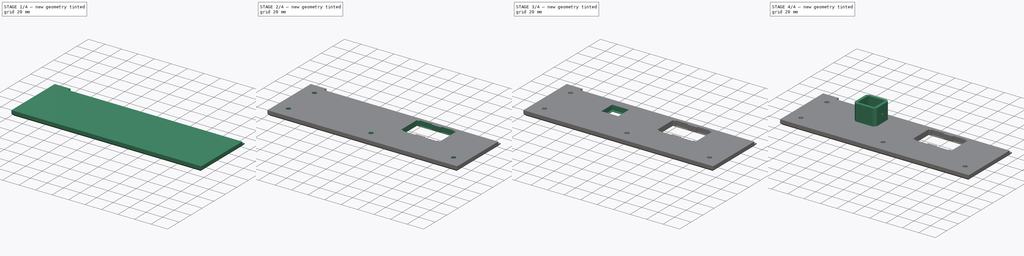
[diagram: build sequence overview — one tinted view per stage of 4, left to right]
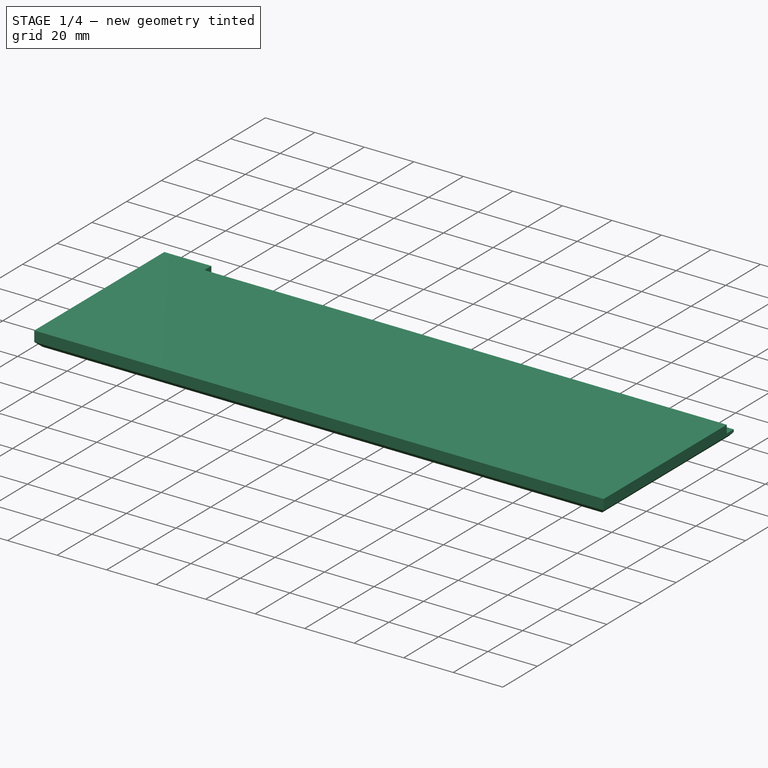
[diagram: stage 1 of 4 — iso view after this stage's code; geometry added in this stage tinted green]
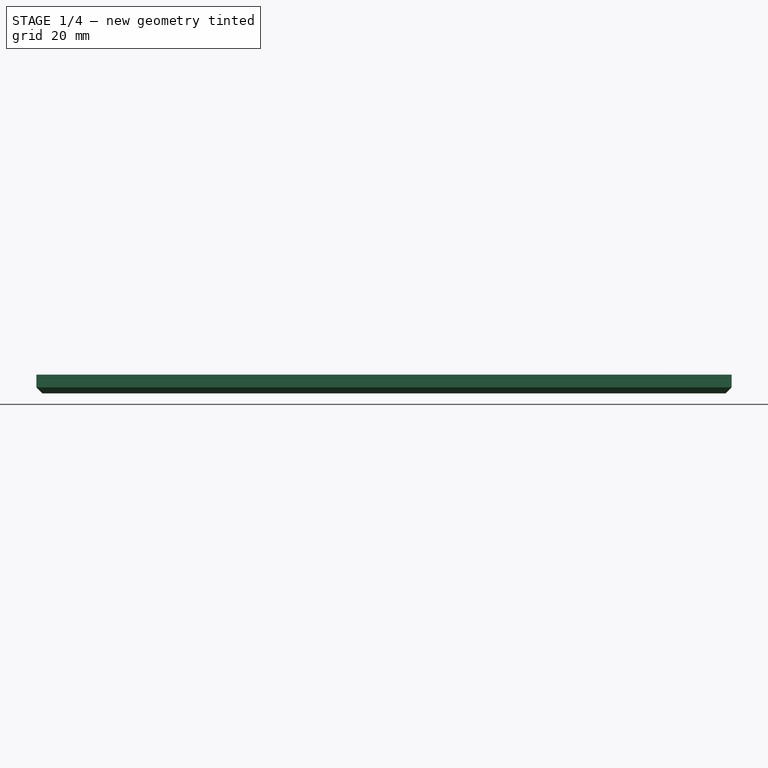
[diagram: stage 1 of 4 — front view after this stage's code; geometry added in this stage tinted green]
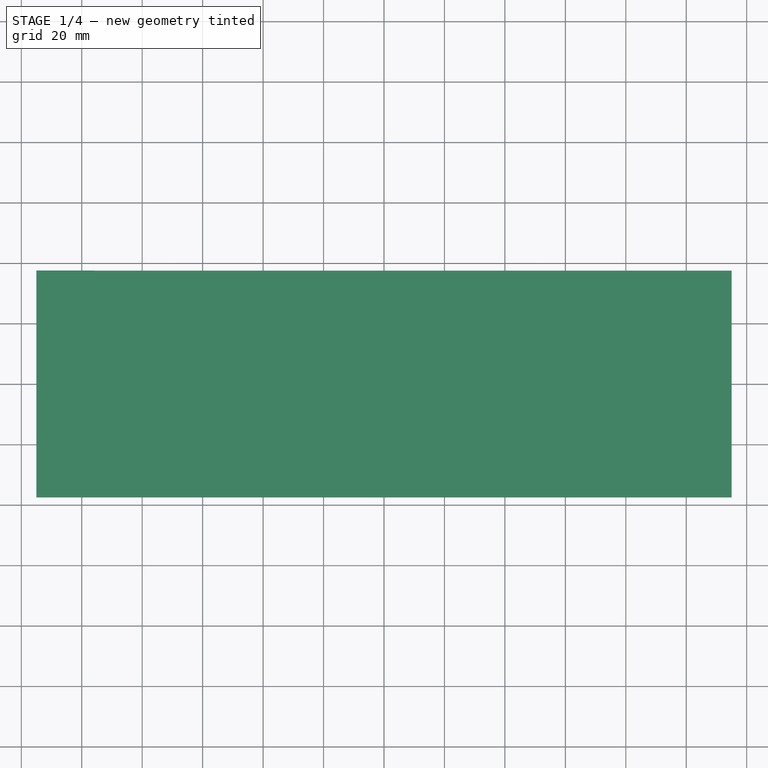
[diagram: stage 1 of 4 — top view after this stage's code; geometry added in this stage tinted green]
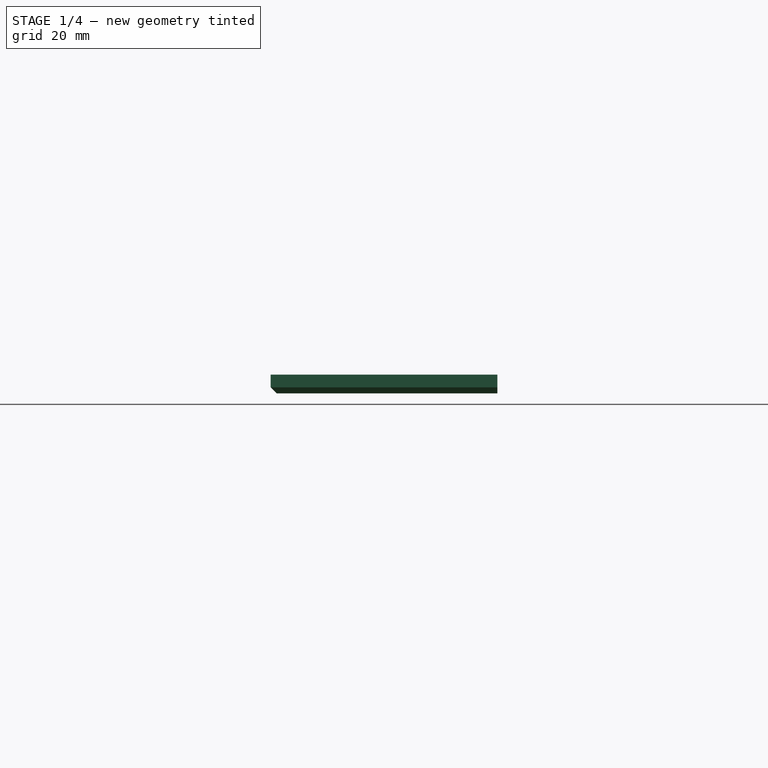
[diagram: stage 1 of 4 — right view after this stage's code; geometry added in this stage tinted green]
FCSTD DOCUMENT  (FreeCAD 1.0R39319 (Git))
Label: ports-panel
License: All rights reserved
objects: Sketcher::SketchObject×9, PartDesign::Pocket×7, PartDesign::Pad×2, PartDesign::Chamfer×2, PartDesign::Body×1, App::Part×1
note: 52 computed .brp shape members not serialized (recipe doc carries the construction recipe); baked Part::Feature solids carry a one-line shape summary decoded from their .brp

FEATURE [Sketcher::SketchObject] Sketch
  ArcFitTolerance = 1e-06
  AttachmentSupport = -> [XY_Plane]
  FullyConstrained = true
  MakeInternals = false
  MapMode = 5
  sketch-geometry (5):
    g0: LineSegment StartX=-115 StartY=-37.5 StartZ=0 EndX=115 EndY=-37.5 EndZ=0
    g1: LineSegment StartX=115 StartY=-37.5 StartZ=0 EndX=115 EndY=37.5 EndZ=0
    g2: LineSegment StartX=115 StartY=37.5 StartZ=0 EndX=-115 EndY=37.5 EndZ=0
    g3: LineSegment StartX=-115 StartY=37.5 StartZ=0 EndX=-115 EndY=-37.5 EndZ=0
    g4: GeomPoint [constr] X=0 Y=-1e-16 Z=0
  constraints (12):
    c: Coincident(g0,g1)
    c: Coincident(g1,g2)
    c: Coincident(g2,g3)
    c: Coincident(g3,g0)
    c: Horizontal(g0)
    c: Horizontal(g2)
    c: Vertical(g1)
    c: Vertical(g3)
    c: Symmetric(g2,g0,g4)
    c: Distance(g1,g3) = 230
    c: Distance(g0,g2) = 75
    c: Coincident(g4,g-1)
FEATURE [PartDesign::Pad] Pad
  Direction = (0,0,1)
  Length = 6.2
  Length2 = 10
  Profile = -> Sketch
  ReferenceAxis = -> Sketch [N_Axis]
  Refine = true
  Suppressed = false
  Type = 0
FEATURE [Sketcher::SketchObject] Sketch001
  ArcFitTolerance = 1e-06
  AttachmentSupport = -> [Pad]
  FullyConstrained = true
  MakeInternals = false
  MapMode = 5
  Placement = pos=(0,0,6.2) rot=(0,0,1;0rad)
  sketch-geometry (9):
    g0: LineSegment [constr] StartX=-115 StartY=-37.5 StartZ=0 EndX=115 EndY=-37.5 EndZ=0
    g1: LineSegment [constr] StartX=115 StartY=-37.5 StartZ=0 EndX=115 EndY=37.5 EndZ=0
    g2: LineSegment [constr] StartX=115 StartY=37.5 StartZ=0 EndX=-115 EndY=37.5 EndZ=0
    g3: LineSegment [constr] StartX=-115 StartY=37.5 StartZ=0 EndX=-115 EndY=-37.5 EndZ=0
    g4: GeomPoint [constr] X=0 Y=0 Z=0
    g5: LineSegment StartX=115 StartY=37.5 StartZ=0 EndX=-96 EndY=37.5 EndZ=0
    g6: LineSegment StartX=-96 StartY=37.5 StartZ=0 EndX=-96 EndY=33.5 EndZ=0
    g7: LineSegment StartX=-96 StartY=33.5 StartZ=0 EndX=115 EndY=33.5 EndZ=0
    g8: LineSegment StartX=115 StartY=33.5 StartZ=0 EndX=115 EndY=37.5 EndZ=0
  constraints (23):
    c: Coincident(g0,g1)
    c: Coincident(g1,g2)
    c: Coincident(g2,g3)
    c: Coincident(g3,g0)
    c: Horizontal(g0)
    c: Horizontal(g2)
    c: Vertical(g1)
    c: Vertical(g3)
    c: Symmetric(g2,g0,g4)
    c: Distance(g1,g3) = 230
    c: Distance(g0,g2) = 75
    c: Coincident(g4,g-1)
    c: Coincident(g5,g6)
    c: Coincident(g6,g7)
    c: Coincident(g7,g8)
    c: Coincident(g8,g5)
    c: Horizontal(g5)
    c: Horizontal(g7)
    c: Vertical(g6)
    c: Vertical(g8)
    c: Distance(g6,g8) = 211
    c: Distance(g5,g7) = 4
    c: Coincident(g5,g1)
FEATURE [PartDesign::Pocket] Pocket
  BaseFeature = -> Pad
  Direction = (0,0,-1)
  Length = 3.2
  Length2 = 5
  Profile = -> Sketch001
  ReferenceAxis = -> Sketch001 [N_Axis]
  Refine = true
  Suppressed = false
  Type = 0
FEATURE [PartDesign::Chamfer] Chamfer
  Angle = 45
  Base = -> Pocket [Edge6,Edge3,Edge8]
  BaseFeature = -> Pocket
  ChamferType = 0
  FlipDirection = false
  Refine = true
  Size = 2
  Size2 = 1
  SupportTransform = false
  Suppressed = false
  UseAllEdges = false
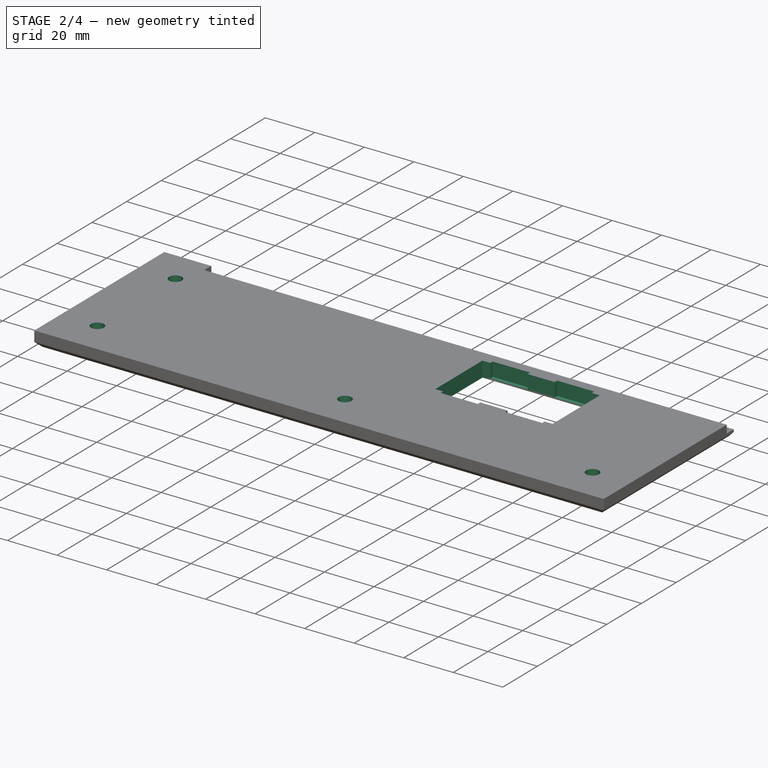
[diagram: stage 2 of 4 — iso view after this stage's code; geometry added in this stage tinted green]
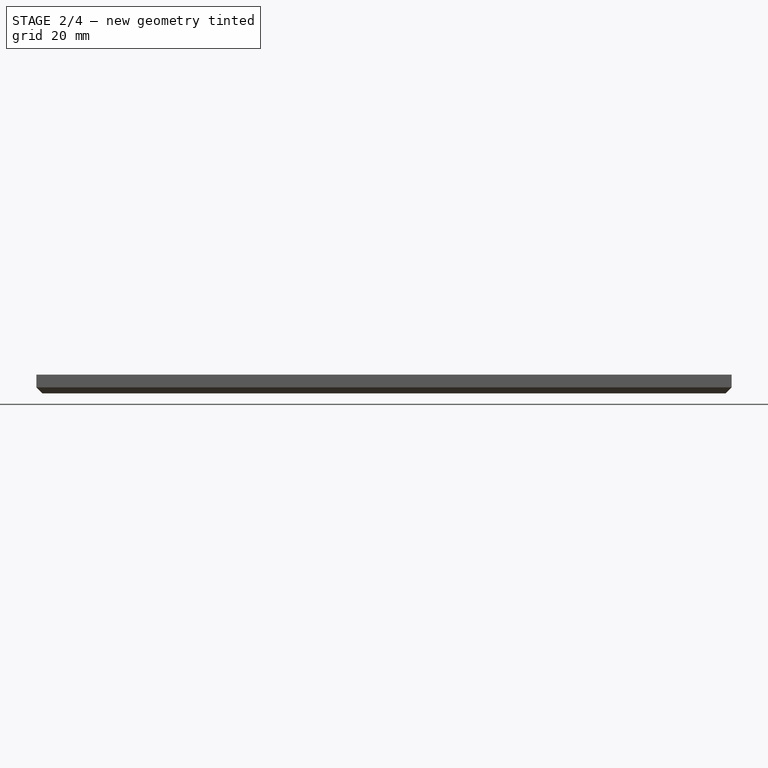
[diagram: stage 2 of 4 — front view after this stage's code; geometry added in this stage tinted green]
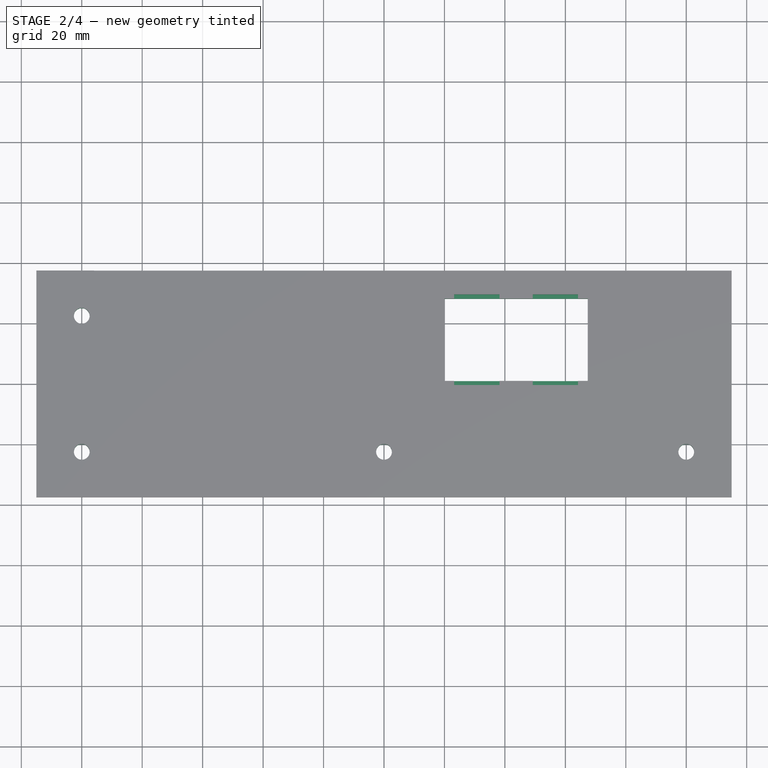
[diagram: stage 2 of 4 — top view after this stage's code; geometry added in this stage tinted green]
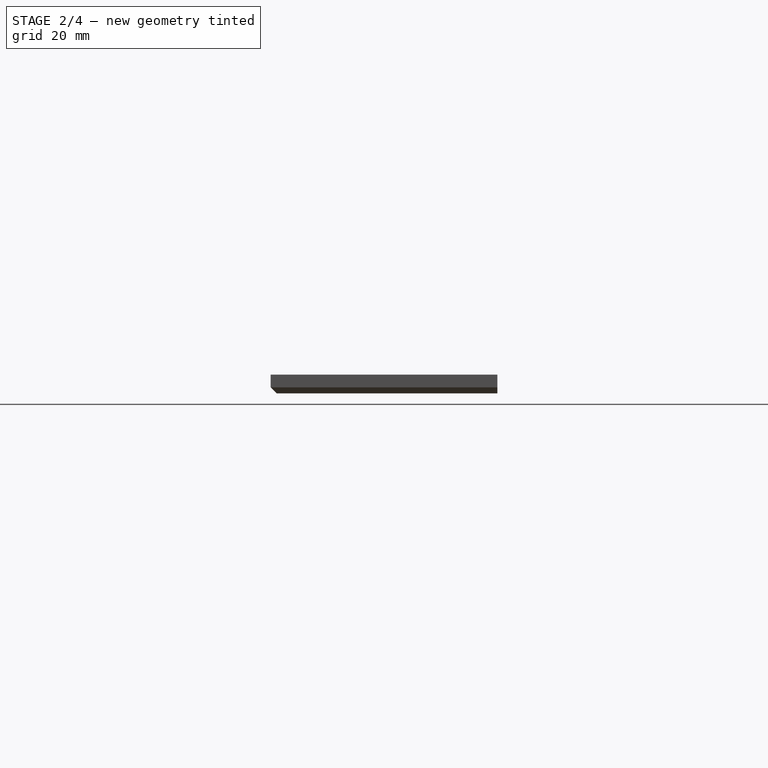
[diagram: stage 2 of 4 — right view after this stage's code; geometry added in this stage tinted green]
FEATURE [Sketcher::SketchObject] Sketch002
  ArcFitTolerance = 1e-06
  AttachmentSupport = -> [Chamfer]
  FullyConstrained = true
  MakeInternals = false
  MapMode = 5
  Placement = pos=(0,0,6.2) rot=(0,0,1;0rad)
  sketch-geometry (9):
    g0: LineSegment [constr] StartX=-100 StartY=-22.5 StartZ=0 EndX=100 EndY=-22.5 EndZ=0
    g1: LineSegment [constr] StartX=100 StartY=-22.5 StartZ=0 EndX=100 EndY=22.5 EndZ=0
    g2: LineSegment [constr] StartX=100 StartY=22.5 StartZ=0 EndX=-100 EndY=22.5 EndZ=0
    g3: LineSegment [constr] StartX=-100 StartY=22.5 StartZ=0 EndX=-100 EndY=-22.5 EndZ=0
    g4: GeomPoint [constr] X=0 Y=0 Z=0
    g5: Circle CenterX=-100 CenterY=-22.5 CenterZ=0 NormalX=0 NormalY=0 NormalZ=1 AngleXU=0 Radius=2.6
    g6: Circle CenterX=0 CenterY=-22.5 CenterZ=0 NormalX=0 NormalY=0 NormalZ=1 AngleXU=0 Radius=2.6
    g7: Circle CenterX=100 CenterY=-22.5 CenterZ=0 NormalX=0 NormalY=0 NormalZ=1 AngleXU=0 Radius=2.6
    g8: Circle CenterX=-100 CenterY=22.5 CenterZ=0 NormalX=0 NormalY=0 NormalZ=1 AngleXU=0 Radius=2.6
  constraints (20):
    c: Coincident(g0,g1)
    c: Coincident(g1,g2)
    c: Coincident(g2,g3)
    c: Coincident(g3,g0)
    c: Horizontal(g0)
    c: Horizontal(g2)
    c: Vertical(g1)
    c: Vertical(g3)
    c: Symmetric(g2,g0,g4)
    c: Distance(g1,g3) = 200
    c: Distance(g0,g2) = 45
    c: Coincident(g4,g-1)
    c: Diameter(g5) = 5.2
    c: Coincident(g5,g0)
    c: Diameter(g6) = 5.2
    c: Symmetric(g0,g0,g6)
    c: Diameter(g7) = 5.2
    c: Coincident(g7,g0)
    c: Diameter(g8) = 5.2
    c: Coincident(g8,g2)
FEATURE [PartDesign::Pocket] Pocket001
  BaseFeature = -> Chamfer
  Direction = (0,0,-1)
  Length = 10
  Length2 = 5
  Profile = -> Sketch002
  ReferenceAxis = -> Sketch002 [N_Axis]
  Refine = true
  Suppressed = false
  Type = 0
FEATURE [Sketcher::SketchObject] Sketch003
  ArcFitTolerance = 1e-06
  AttachmentSupport = -> [Pocket001]
  FullyConstrained = true
  MakeInternals = false
  MapMode = 5
  Placement = pos=(0,0,0) rot=(1,0,0;3.14159rad)
  sketch-geometry (17):
    g0: LineSegment [constr] StartX=-115 StartY=-37.5 StartZ=0 EndX=115 EndY=-37.5 EndZ=0
    g1: LineSegment [constr] StartX=115 StartY=-37.5 StartZ=0 EndX=115 EndY=37.5 EndZ=0
    g2: LineSegment [constr] StartX=115 StartY=37.5 StartZ=0 EndX=-115 EndY=37.5 EndZ=0
    g3: LineSegment [constr] StartX=-115 StartY=37.5 StartZ=0 EndX=-115 EndY=-37.5 EndZ=0
    g4: GeomPoint [constr] X=0 Y=0 Z=0
    g5: LineSegment [constr] StartX=115 StartY=37.5 StartZ=0 EndX=-115 EndY=37.5 EndZ=0
    g6: LineSegment [constr] StartX=-115 StartY=37.5 StartZ=0 EndX=-115 EndY=7.5 EndZ=0
    g7: LineSegment [constr] StartX=-115 StartY=7.5 StartZ=0 EndX=115 EndY=7.5 EndZ=0
    g8: LineSegment [constr] StartX=115 StartY=7.5 StartZ=0 EndX=115 EndY=37.5 EndZ=0
    g9: LineSegment [constr] StartX=0 StartY=0 StartZ=0 EndX=0 EndY=-1 EndZ=0
    g10: LineSegment [constr] StartX=0 StartY=-1 StartZ=0 EndX=20 EndY=-1 EndZ=0
    g11: LineSegment [constr] StartX=20 StartY=-1 StartZ=0 EndX=20 EndY=0 EndZ=0
    g12: LineSegment [constr] StartX=20 StartY=0 StartZ=0 EndX=0 EndY=0 EndZ=0
    g13: LineSegment StartX=20 StartY=-1 StartZ=0 EndX=20 EndY=-28.2 EndZ=0
    g14: LineSegment StartX=20 StartY=-28.2 StartZ=0 EndX=67.4 EndY=-28.2 EndZ=0
    g15: LineSegment StartX=67.4 StartY=-28.2 StartZ=0 EndX=67.4 EndY=-1 EndZ=0
    g16: LineSegment StartX=67.4 StartY=-1 StartZ=0 EndX=20 EndY=-1 EndZ=0
  constraints (45):
    c: Coincident(g0,g1)
    c: Coincident(g1,g2)
    c: Coincident(g2,g3)
    c: Coincident(g3,g0)
    c: Horizontal(g0)
    c: Horizontal(g2)
    c: Vertical(g1)
    c: Vertical(g3)
    c: Symmetric(g2,g0,g4)
    c: Distance(g1,g3) = 230
    c: Distance(g0,g2) = 75
    c: Coincident(g4,g-1)
    c: Coincident(g5,g6)
    c: Coincident(g6,g7)
    c: Coincident(g7,g8)
    c: Coincident(g8,g5)
    c: Horizontal(g5)
    c: Horizontal(g7)
    c: Vertical(g6)
    c: Vertical(g8)
    c: Distance(g5,g7) = 30
    c: Coincident(g5,g1)
    c: PointOnObject(g6,g3)
    c: Coincident(g9,g10)
    c: Coincident(g10,g11)
    c: Coincident(g11,g12)
    c: Coincident(g12,g9)
    c: Vertical(g9)
    c: Vertical(g11)
    c: Horizontal(g10)
    c: Horizontal(g12)
    c: Distance(g9,g11) = 20
    c: Distance(g10,g12) = 1
    c: Coincident(g9,g4)
    c: Coincident(g13,g14)
    c: Coincident(g14,g15)
    c: Coincident(g15,g16)
    c: Coincident(g16,g13)
    c: Vertical(g13)
    c: Vertical(g15)
    c: Horizontal(g14)
    c: Horizontal(g16)
    c: Distance(g13,g15) = 47.4
    c: Distance(g14,g16) = 27.2
    c: Coincident(g13,g10)
FEATURE [PartDesign::Pocket] Pocket002
  BaseFeature = -> Pocket001
  Direction = (0,0,1)
  Length = 7
  Length2 = 5
  Profile = -> Sketch003
  ReferenceAxis = -> Sketch003 [N_Axis]
  Refine = true
  Suppressed = false
  Type = 0
FEATURE [Sketcher::SketchObject] Sketch004
  ArcFitTolerance = 1e-06
  AttachmentSupport = -> [Pocket002]
  FullyConstrained = true
  MakeInternals = false
  MapMode = 5
  Placement = pos=(0,0,6.2) rot=(0,0,1;0rad)
  sketch-geometry (15):
    g0: LineSegment [constr] StartX=0 StartY=0 StartZ=0 EndX=30.7 EndY=0 EndZ=0
    g1: LineSegment [constr] StartX=30.7 StartY=0 StartZ=0 EndX=30.7 EndY=14.6 EndZ=0
    g2: LineSegment [constr] StartX=30.7 StartY=14.6 StartZ=0 EndX=0 EndY=14.6 EndZ=0
    g3: LineSegment [constr] StartX=0 StartY=14.6 StartZ=0 EndX=0 EndY=0 EndZ=0
    g4: LineSegment StartX=23.2 StartY=-0.4 StartZ=0 EndX=38.2 EndY=-0.4 EndZ=0
    g5: LineSegment StartX=38.2 StartY=-0.4 StartZ=0 EndX=38.2 EndY=29.6 EndZ=0
    g6: LineSegment StartX=38.2 StartY=29.6 StartZ=0 EndX=23.2 EndY=29.6 EndZ=0
    g7: LineSegment StartX=23.2 StartY=29.6 StartZ=0 EndX=23.2 EndY=-0.4 EndZ=0
    g8: GeomPoint [constr] X=30.7 Y=14.6 Z=0
    g9: LineSegment [constr] StartX=30.7 StartY=14.6 StartZ=0 EndX=56.7 EndY=14.6 EndZ=0
    g10: LineSegment StartX=49.2 StartY=-0.4 StartZ=0 EndX=64.2 EndY=-0.4 EndZ=0
    g11: LineSegment StartX=64.2 StartY=-0.4 StartZ=0 EndX=64.2 EndY=29.6 EndZ=0
    g12: LineSegment StartX=64.2 StartY=29.6 StartZ=0 EndX=49.2 EndY=29.6 EndZ=0
    g13: LineSegment StartX=49.2 StartY=29.6 StartZ=0 EndX=49.2 EndY=-0.4 EndZ=0
    g14: GeomPoint [constr] X=56.7 Y=14.6 Z=0
  constraints (38):
    c: Coincident(g0,g1)
    c: Coincident(g1,g2)
    c: Coincident(g2,g3)
    c: Coincident(g3,g0)
    c: Horizontal(g0)
    c: Horizontal(g2)
    c: Vertical(g1)
    c: Vertical(g3)
    c: Distance(g1,g3) = 30.7
    c: Distance(g0,g2) = 14.6
    c: Coincident(g0,g-1)
    c: Coincident(g4,g5)
    c: Coincident(g5,g6)
    c: Coincident(g6,g7)
    c: Coincident(g7,g4)
    c: Horizontal(g4)
    c: Horizontal(g6)
    c: Vertical(g5)
    c: Vertical(g7)
    c: Symmetric(g6,g4,g8)
    c: Distance(g5,g7) = 15
    c: Distance(g4,g6) = 30
    c: Coincident(g8,g1)
    c: Distance(g9) = 26
    c: Coincident(g9,g1)
    c: Horizontal(g9)
    c: Coincident(g10,g11)
    c: Coincident(g11,g12)
    c: Coincident(g12,g13)
    c: Coincident(g13,g10)
    c: Horizontal(g10)
    c: Horizontal(g12)
    c: Vertical(g11)
    c: Vertical(g13)
    c: Symmetric(g12,g10,g14)
    c: Distance(g11,g13) = 15
    c: Distance(g10,g12) = 30
    c: Coincident(g14,g9)
FEATURE [PartDesign::Pocket] Pocket003
  BaseFeature = -> Pocket002
  Direction = (0,0,-1)
  Length = 5.6
  Length2 = 5
  Profile = -> Sketch004
  ReferenceAxis = -> Sketch004 [N_Axis]
  Refine = true
  Suppressed = false
  Type = 0
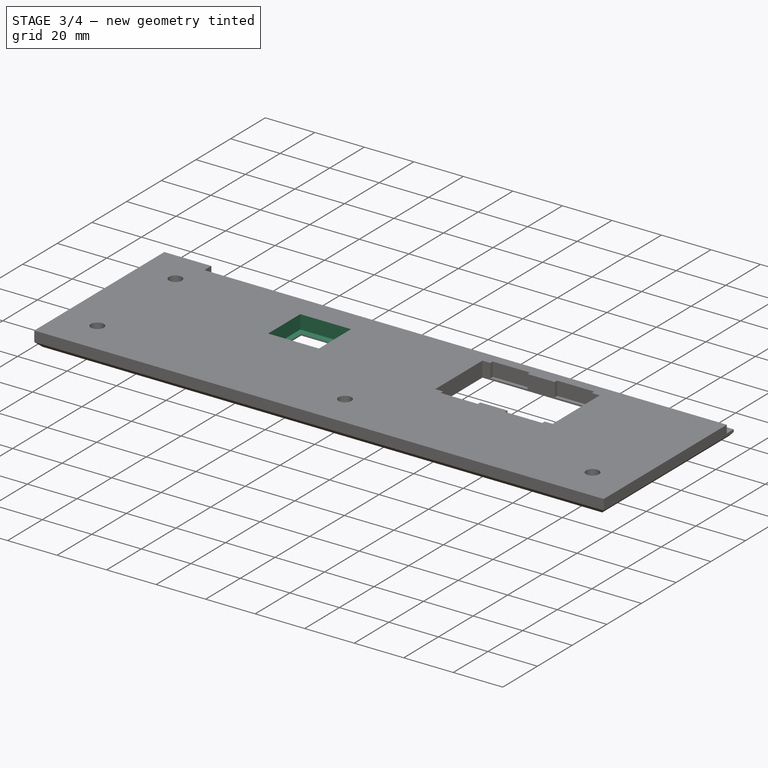
[diagram: stage 3 of 4 — iso view after this stage's code; geometry added in this stage tinted green]
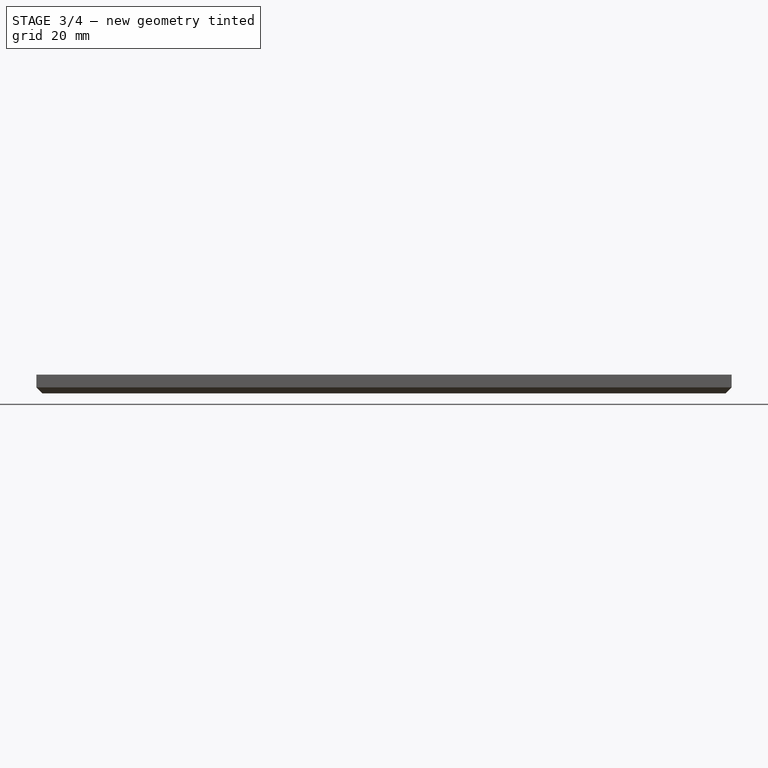
[diagram: stage 3 of 4 — front view after this stage's code; geometry added in this stage tinted green]
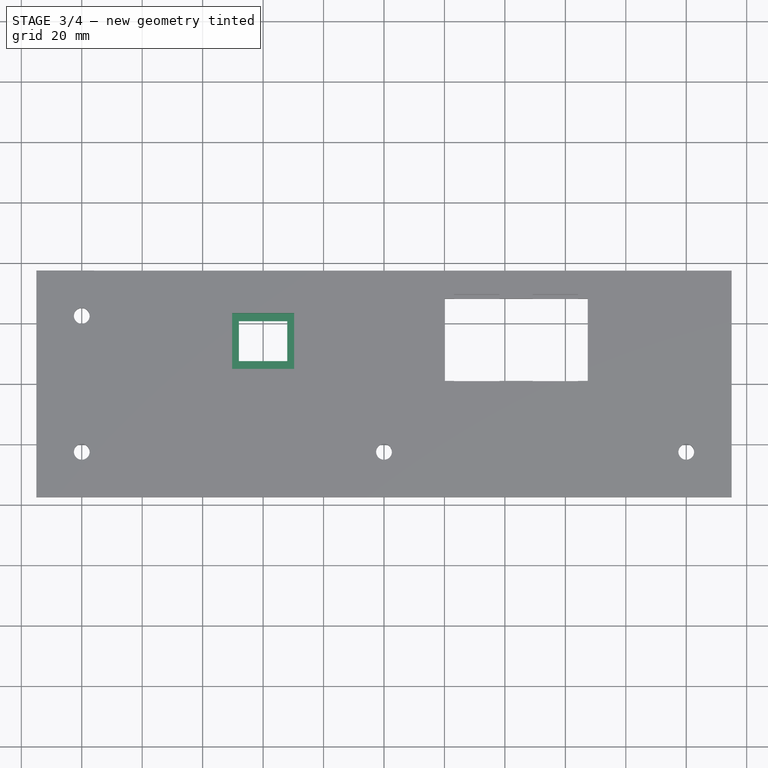
[diagram: stage 3 of 4 — top view after this stage's code; geometry added in this stage tinted green]
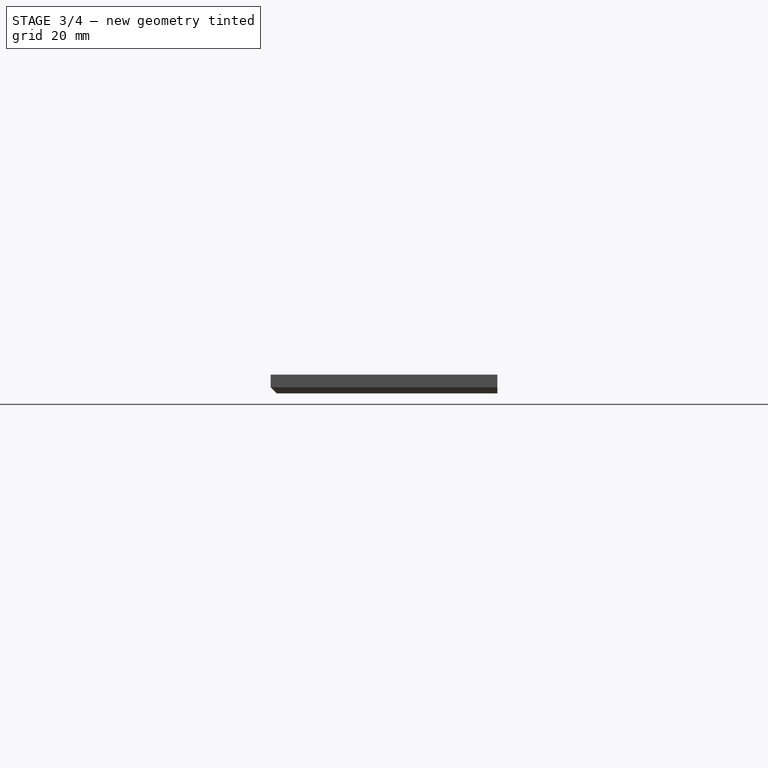
[diagram: stage 3 of 4 — right view after this stage's code; geometry added in this stage tinted green]
FEATURE [Sketcher::SketchObject] Sketch005
  ArcFitTolerance = 1e-06
  AttachmentSupport = -> [Pocket003]
  FullyConstrained = true
  MakeInternals = false
  MapMode = 5
  Placement = pos=(0,0,6.2) rot=(0,0,1;0rad)
  sketch-geometry (18):
    g0: LineSegment [constr] StartX=-115 StartY=-37.5 StartZ=0 EndX=115 EndY=-37.5 EndZ=0
    g1: LineSegment [constr] StartX=115 StartY=-37.5 StartZ=0 EndX=115 EndY=37.5 EndZ=0
    g2: LineSegment [constr] StartX=115 StartY=37.5 StartZ=0 EndX=-115 EndY=37.5 EndZ=0
    g3: LineSegment [constr] StartX=-115 StartY=37.5 StartZ=0 EndX=-115 EndY=-37.5 EndZ=0
    g4: GeomPoint [constr] X=0 Y=0 Z=0
    g5: LineSegment [constr] StartX=115 StartY=-37.5 StartZ=0 EndX=115 EndY=-7.5 EndZ=0
    g6: LineSegment [constr] StartX=115 StartY=-7.5 StartZ=0 EndX=-115 EndY=-7.5 EndZ=0
    g7: LineSegment [constr] StartX=-115 StartY=-7.5 StartZ=0 EndX=-115 EndY=-37.5 EndZ=0
    g8: LineSegment [constr] StartX=-115 StartY=-37.5 StartZ=0 EndX=115 EndY=-37.5 EndZ=0
    g9: LineSegment [constr] StartX=0 StartY=0 StartZ=0 EndX=0 EndY=14.2 EndZ=0
    g10: LineSegment [constr] StartX=0 StartY=14.2 StartZ=0 EndX=-40 EndY=14.2 EndZ=0
    g11: LineSegment [constr] StartX=-40 StartY=14.2 StartZ=0 EndX=-40 EndY=0 EndZ=0
    g12: LineSegment [constr] StartX=-40 StartY=0 StartZ=0 EndX=0 EndY=0 EndZ=0
    g13: LineSegment StartX=-48 StartY=7.6 StartZ=0 EndX=-32 EndY=7.6 EndZ=0
    g14: LineSegment StartX=-32 StartY=7.6 StartZ=0 EndX=-32 EndY=20.8 EndZ=0
    g15: LineSegment StartX=-32 StartY=20.8 StartZ=0 EndX=-48 EndY=20.8 EndZ=0
    g16: LineSegment StartX=-48 StartY=20.8 StartZ=0 EndX=-48 EndY=7.6 EndZ=0
    g17: GeomPoint [constr] X=-40 Y=14.2 Z=0
  constraints (46):
    c: Coincident(g0,g1)
    c: Coincident(g1,g2)
    c: Coincident(g2,g3)
    c: Coincident(g3,g0)
    c: Horizontal(g0)
    c: Horizontal(g2)
    c: Vertical(g1)
    c: Vertical(g3)
    c: Symmetric(g2,g0,g4)
    c: Distance(g1,g3) = 230
    c: Distance(g0,g2) = 75
    c: Coincident(g4,g-1)
    c: Coincident(g5,g6)
    c: Coincident(g6,g7)
    c: Coincident(g7,g8)
    c: Coincident(g8,g5)
    c: Vertical(g5)
    c: Vertical(g7)
    c: Horizontal(g6)
    c: Horizontal(g8)
    c: Distance(g6,g8) = 30
    c: Coincident(g5,g0)
    c: PointOnObject(g6,g3)
    c: Coincident(g9,g10)
    c: Coincident(g10,g11)
    c: Coincident(g11,g12)
    c: Coincident(g12,g9)
    c: Vertical(g9)
    c: Vertical(g11)
    c: Horizontal(g10)
    c: Horizontal(g12)
    c: Distance(g9,g11) = 40
    c: Distance(g10,g12) = 14.2
    c: Coincident(g9,g4)
    c: Coincident(g13,g14)
    c: Coincident(g14,g15)
    c: Coincident(g15,g16)
    c: Coincident(g16,g13)
    c: Horizontal(g13)
    c: Horizontal(g15)
    c: Vertical(g14)
    c: Vertical(g16)
    c: Symmetric(g15,g13,g17)
    c: Distance(g14,g16) = 16
    c: Distance(g13,g15) = 13.2
    c: Coincident(g17,g10)
FEATURE [PartDesign::Pocket] Pocket004
  BaseFeature = -> Pocket003
  Direction = (0,0,-1)
  Length = 8
  Length2 = 5
  Profile = -> Sketch005
  ReferenceAxis = -> Sketch005 [N_Axis]
  Refine = true
  Suppressed = false
  Type = 0
FEATURE [Sketcher::SketchObject] Sketch006
  ArcFitTolerance = 1e-06
  AttachmentSupport = -> [Pocket004]
  FullyConstrained = true
  MakeInternals = false
  MapMode = 5
  Placement = pos=(0,0,6.2) rot=(0,0,1;0rad)
  sketch-geometry (9):
    g0: LineSegment [constr] StartX=0 StartY=0 StartZ=0 EndX=0 EndY=14.2 EndZ=0
    g1: LineSegment [constr] StartX=0 StartY=14.2 StartZ=0 EndX=-40 EndY=14.2 EndZ=0
    g2: LineSegment [constr] StartX=-40 StartY=14.2 StartZ=0 EndX=-40 EndY=0 EndZ=0
    g3: LineSegment [constr] StartX=-40 StartY=0 StartZ=0 EndX=0 EndY=0 EndZ=0
    g4: LineSegment StartX=-50.25 StartY=4.95 StartZ=0 EndX=-29.75 EndY=4.95 EndZ=0
    g5: LineSegment StartX=-29.75 StartY=4.95 StartZ=0 EndX=-29.75 EndY=23.45 EndZ=0
    g6: LineSegment StartX=-29.75 StartY=23.45 StartZ=0 EndX=-50.25 EndY=23.45 EndZ=0
    g7: LineSegment StartX=-50.25 StartY=23.45 StartZ=0 EndX=-50.25 EndY=4.95 EndZ=0
    g8: GeomPoint [constr] X=-40 Y=14.2 Z=0
  constraints (23):
    c: Coincident(g0,g1)
    c: Coincident(g1,g2)
    c: Coincident(g2,g3)
    c: Coincident(g3,g0)
    c: Vertical(g0)
    c: Vertical(g2)
    c: Horizontal(g1)
    c: Horizontal(g3)
    c: Distance(g0,g2) = 40
    c: Distance(g1,g3) = 14.2
    c: Coincident(g0,g-1)
    c: Coincident(g4,g5)
    c: Coincident(g5,g6)
    c: Coincident(g6,g7)
    c: Coincident(g7,g4)
    c: Horizontal(g4)
    c: Horizontal(g6)
    c: Vertical(g5)
    c: Vertical(g7)
    c: Symmetric(g6,g4,g8)
    c: Distance(g5,g7) = 20.5
    c: Distance(g4,g6) = 18.5
    c: Coincident(g8,g1)
FEATURE [PartDesign::Pocket] Pocket005
  BaseFeature = -> Pocket004
  Direction = (0,0,-1)
  Length = 5.6
  Length2 = 5
  Profile = -> Sketch006
  ReferenceAxis = -> Sketch006 [N_Axis]
  Refine = true
  Suppressed = false
  Type = 0
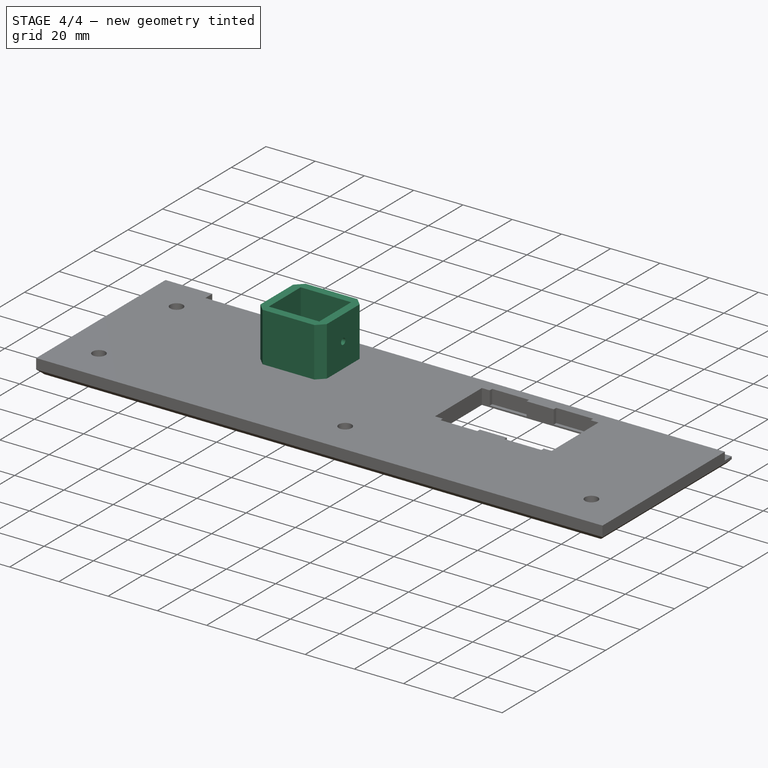
[diagram: stage 4 of 4 — iso view after this stage's code; geometry added in this stage tinted green]
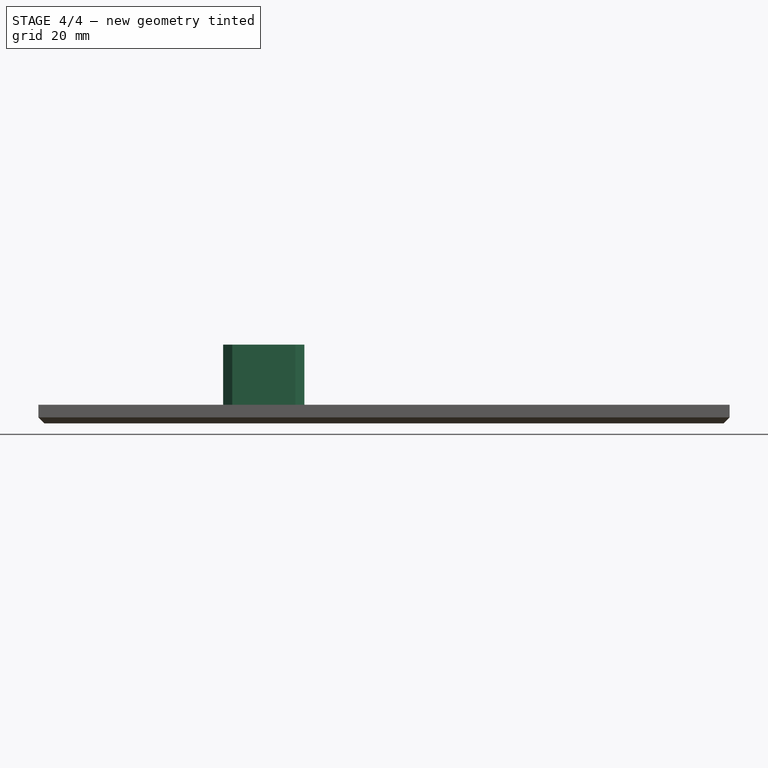
[diagram: stage 4 of 4 — front view after this stage's code; geometry added in this stage tinted green]
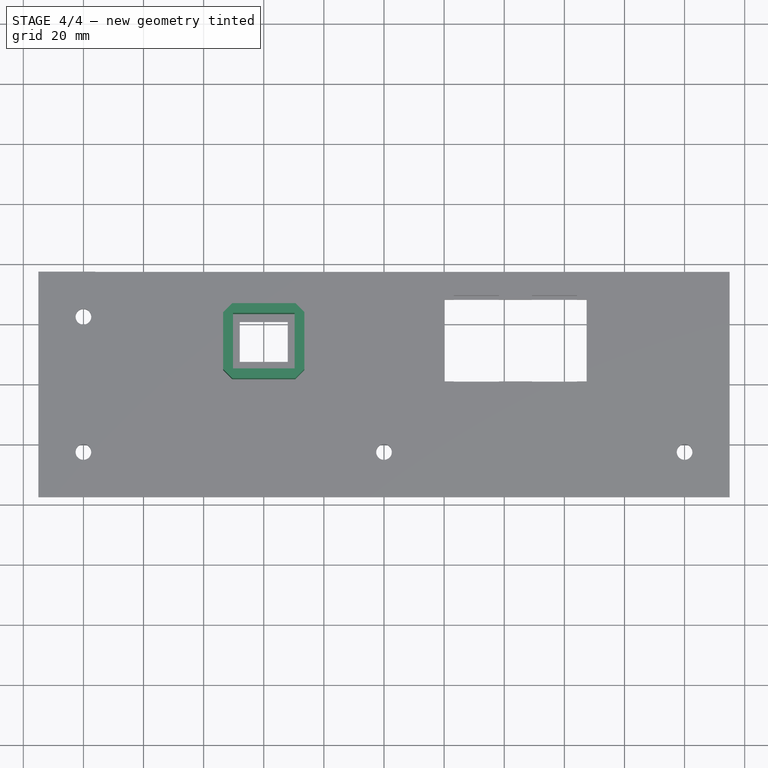
[diagram: stage 4 of 4 — top view after this stage's code; geometry added in this stage tinted green]
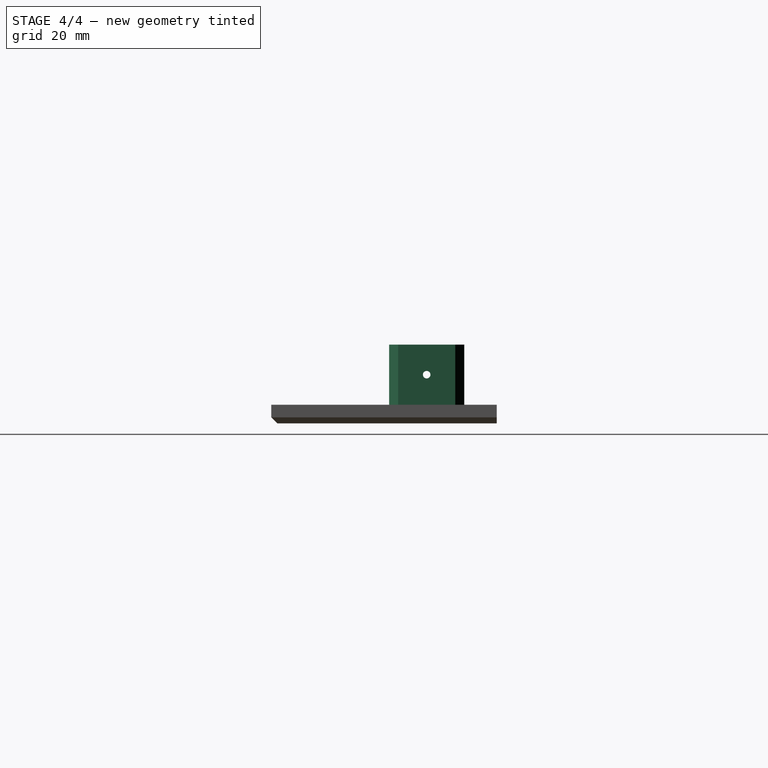
[diagram: stage 4 of 4 — right view after this stage's code; geometry added in this stage tinted green]
FEATURE [Sketcher::SketchObject] Sketch007
  ArcFitTolerance = 1e-06
  AttachmentSupport = -> [Pocket005]
  FullyConstrained = true
  MakeInternals = false
  MapMode = 5
  Placement = pos=(0,0,6.2) rot=(0,0,1;0rad)
  sketch-geometry (14):
    g0: LineSegment [constr] StartX=0 StartY=0 StartZ=0 EndX=0 EndY=14.2 EndZ=0
    g1: LineSegment [constr] StartX=0 StartY=14.2 StartZ=0 EndX=-40 EndY=14.2 EndZ=0
    g2: LineSegment [constr] StartX=-40 StartY=14.2 StartZ=0 EndX=-40 EndY=0 EndZ=0
    g3: LineSegment [constr] StartX=-40 StartY=0 StartZ=0 EndX=0 EndY=0 EndZ=0
    g4: LineSegment StartX=-50.25 StartY=4.95 StartZ=0 EndX=-29.75 EndY=4.95 EndZ=0
    g5: LineSegment StartX=-29.75 StartY=4.95 StartZ=0 EndX=-29.75 EndY=23.45 EndZ=0
    g6: LineSegment StartX=-29.75 StartY=23.45 StartZ=0 EndX=-50.25 EndY=23.45 EndZ=0
    g7: LineSegment StartX=-50.25 StartY=23.45 StartZ=0 EndX=-50.25 EndY=4.95 EndZ=0
    g8: GeomPoint [constr] X=-40 Y=14.2 Z=0
    g9: LineSegment StartX=-53.5 StartY=1.7 StartZ=0 EndX=-26.5 EndY=1.7 EndZ=0
    g10: LineSegment StartX=-26.5 StartY=1.7 StartZ=0 EndX=-26.5 EndY=26.7 EndZ=0
    g11: LineSegment StartX=-26.5 StartY=26.7 StartZ=0 EndX=-53.5 EndY=26.7 EndZ=0
    g12: LineSegment StartX=-53.5 StartY=26.7 StartZ=0 EndX=-53.5 EndY=1.7 EndZ=0
    g13: GeomPoint [constr] X=-40 Y=14.2 Z=0
  constraints (35):
    c: Coincident(g0,g1)
    c: Coincident(g1,g2)
    c: Coincident(g2,g3)
    c: Coincident(g3,g0)
    c: Vertical(g0)
    c: Vertical(g2)
    c: Horizontal(g1)
    c: Horizontal(g3)
    c: Distance(g0,g2) = 40
    c: Distance(g1,g3) = 14.2
    c: Coincident(g0,g-1)
    c: Coincident(g4,g5)
    c: Coincident(g5,g6)
    c: Coincident(g6,g7)
    c: Coincident(g7,g4)
    c: Horizontal(g4)
    c: Horizontal(g6)
    c: Vertical(g5)
    c: Vertical(g7)
    c: Symmetric(g6,g4,g8)
    c: Distance(g5,g7) = 20.5
    c: Distance(g4,g6) = 18.5
    c: Coincident(g8,g1)
    c: Coincident(g9,g10)
    c: Coincident(g10,g11)
    c: Coincident(g11,g12)
    c: Coincident(g12,g9)
    c: Horizontal(g9)
    c: Horizontal(g11)
    c: Vertical(g10)
    c: Vertical(g12)
    c: Symmetric(g11,g9,g13)
    c: Distance(g10,g12) = 27
    c: Distance(g9,g11) = 25
    c: Coincident(g13,g1)
FEATURE [PartDesign::Pad] Pad001
  BaseFeature = -> Pocket005
  Direction = (0,0,1)
  Length = 20
  Length2 = 10
  Profile = -> Sketch007
  ReferenceAxis = -> Sketch007 [N_Axis]
  Refine = true
  Suppressed = false
  Type = 0
FEATURE [PartDesign::Chamfer] Chamfer001
  Angle = 45
  Base = -> Pad001 [Edge72,Edge73,Edge77,Edge75]
  BaseFeature = -> Pad001
  ChamferType = 0
  FlipDirection = false
  Refine = true
  Size = 3
  Size2 = 1
  SupportTransform = false
  Suppressed = false
  UseAllEdges = false
FEATURE [Sketcher::SketchObject] Sketch008
  ArcFitTolerance = 1e-06
  AttachmentSupport = -> [Chamfer001]
  FullyConstrained = true
  MakeInternals = false
  MapMode = 5
  Placement = pos=(-53.5,0,0) rot=(0.57735,-0.57735,-0.57735;2.0944rad)
  sketch-geometry (9):
    g0: LineSegment [constr] StartX=0 StartY=0 StartZ=0 EndX=0 EndY=6.2 EndZ=0
    g1: LineSegment [constr] StartX=0 StartY=6.2 StartZ=0 EndX=-26.7 EndY=6.2 EndZ=0
    g2: LineSegment [constr] StartX=-26.7 StartY=6.2 StartZ=0 EndX=-26.7 EndY=0 EndZ=0
    g3: LineSegment [constr] StartX=-26.7 StartY=0 StartZ=0 EndX=0 EndY=0 EndZ=0
    g4: LineSegment [constr] StartX=-26.7 StartY=6.2 StartZ=0 EndX=-14.2 EndY=6.2 EndZ=0
    g5: LineSegment [constr] StartX=-14.2 StartY=6.2 StartZ=0 EndX=-14.2 EndY=16.2 EndZ=0
    g6: LineSegment [constr] StartX=-14.2 StartY=16.2 StartZ=0 EndX=-26.7 EndY=16.2 EndZ=0
    g7: LineSegment [constr] StartX=-26.7 StartY=16.2 StartZ=0 EndX=-26.7 EndY=6.2 EndZ=0
    g8: Circle CenterX=-14.2 CenterY=16.2 CenterZ=0 NormalX=0 NormalY=0 NormalZ=1 AngleXU=0 Radius=1.25
  constraints (24):
    c: Coincident(g0,g1)
    c: Coincident(g1,g2)
    c: Coincident(g2,g3)
    c: Coincident(g3,g0)
    c: Vertical(g0)
    c: Vertical(g2)
    c: Horizontal(g1)
    c: Horizontal(g3)
    c: Distance(g0,g2) = 26.7
    c: Distance(g1,g3) = 6.2
    c: Coincident(g0,g-1)
    c: Coincident(g4,g5)
    c: Coincident(g5,g6)
    c: Coincident(g6,g7)
    c: Coincident(g7,g4)
    c: Horizontal(g4)
    c: Horizontal(g6)
    c: Vertical(g5)
    c: Vertical(g7)
    c: Distance(g5,g7) = 12.5
    c: Distance(g4,g6) = 10
    c: Coincident(g4,g1)
    c: Diameter(g8) = 2.5
    c: Coincident(g8,g5)
FEATURE [PartDesign::Pocket] Pocket006
  BaseFeature = -> Chamfer001
  Direction = (1,0,0)
  Length = 30
  Length2 = 5
  Profile = -> Sketch008
  ReferenceAxis = -> Sketch008 [N_Axis]
  Refine = true
  Suppressed = false
  Type = 0
FEATURE [PartDesign::Body] Body  label="ports-panel-body"
  AllowCompound = false
  Group = -> [Sketch,Pad,Sketch001,Pocket,Chamfer,Sketch002,Pocket001,Sketch003,Pocket002,Sketch004,Pocket003,Sketch005,Pocket004,Sketch006,Pocket005,Sketch007,Pad001,Chamfer001,Sketch008,Pocket006]
  Origin = -> Origin
  Tip = -> Pocket006
FEATURE [App::Part] Part  label="ports-panel-part"
  Group = -> [Body]
  Origin = -> Origin001
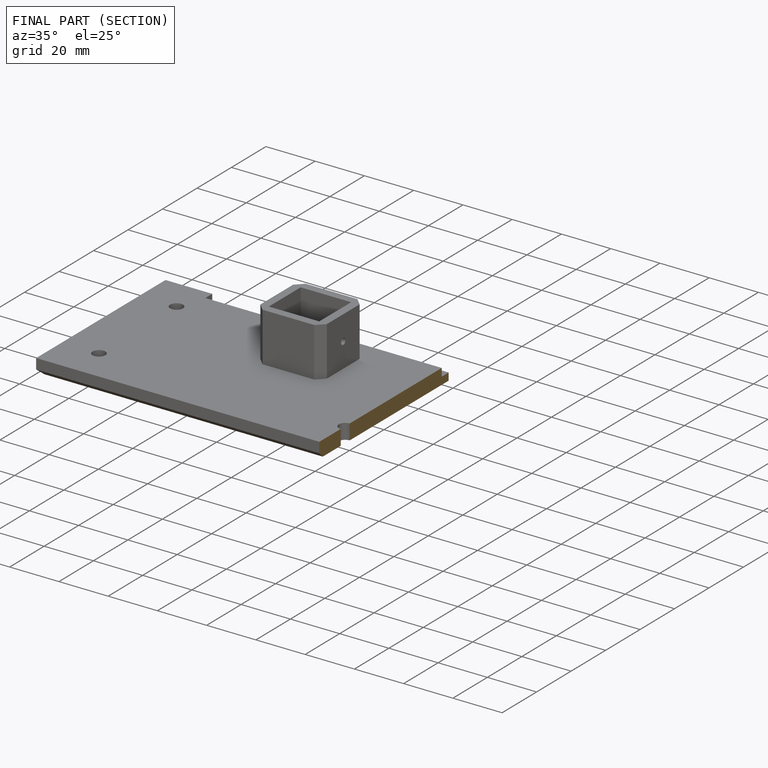
[diagram: finished part — half-section view (interior)]
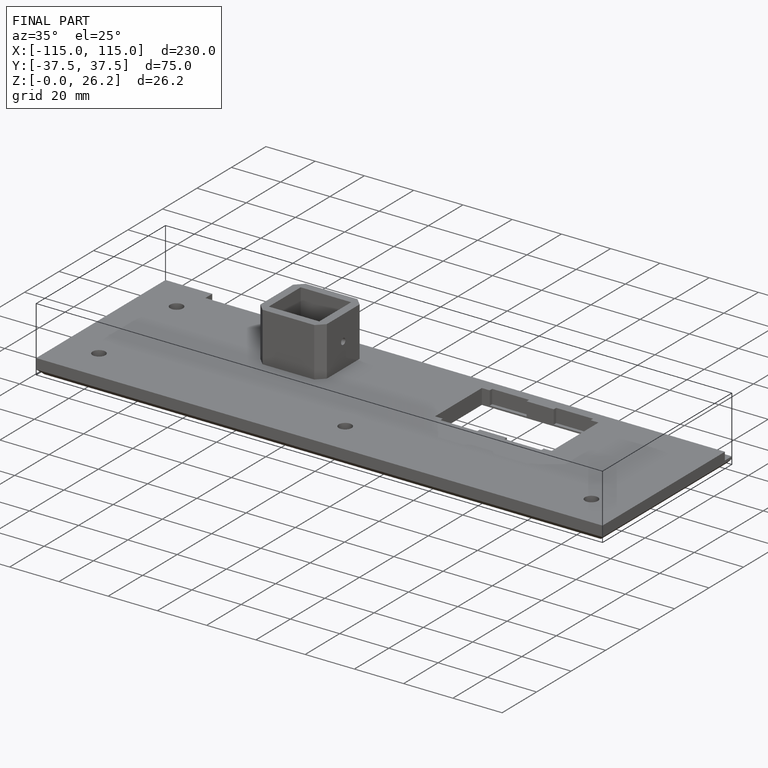
[diagram: finished part — iso view with bounding-box wireframe]
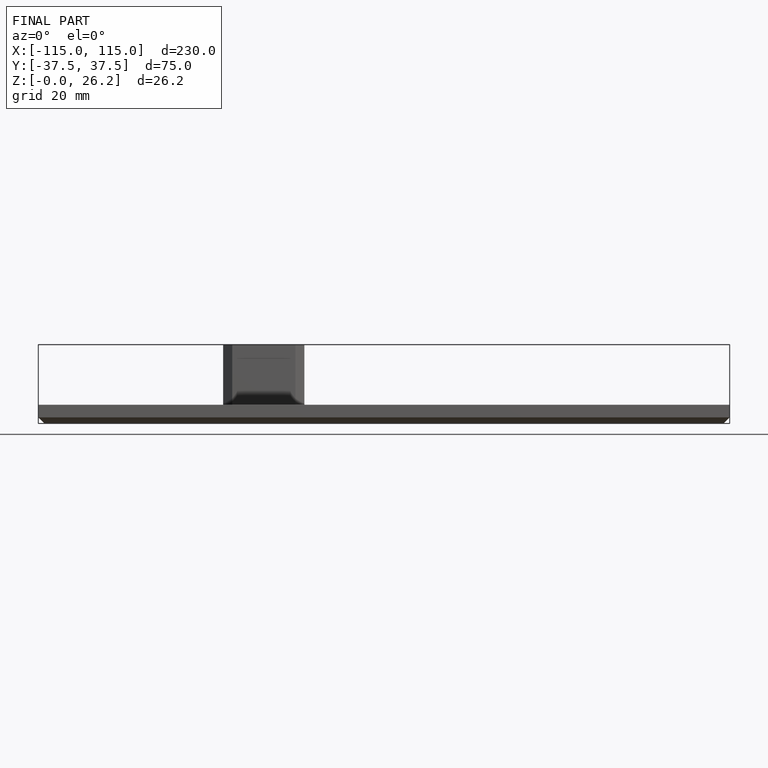
[diagram: finished part — front view with bounding-box wireframe]
